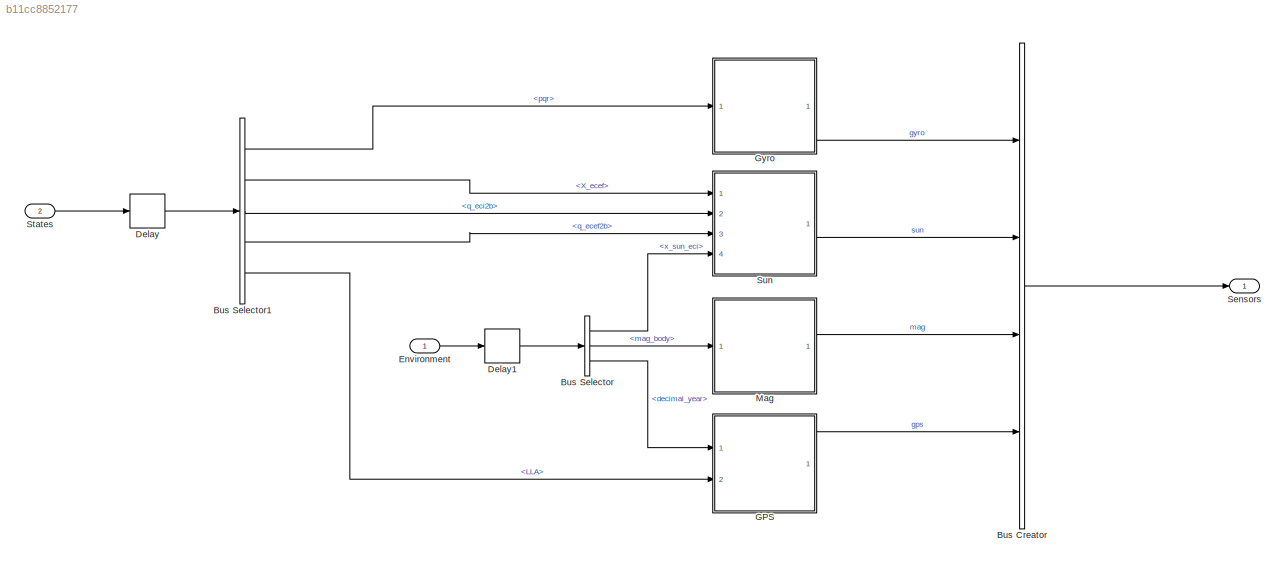
MODEL slx_b11cc8852177
KIND model
CONFIG AbsTol = auto
CONFIG EnableMultiTasking = off
CONFIG FixedStep = auto
CONFIG MaxStep = auto
CONFIG MinStep = auto
CONFIG RelTol = 1e-3
CONFIG SampleTimeConstraint = Unconstrained
CONFIG SolverName = FixedStepAuto
CONFIG StartTime = 0.0
CONFIG StopTime = 10.0
BLOCK [BusCreator] Bus Creator
  DisplayOption = bar
  InheritFromInputs = off
  Inputs = 4
  OutDataTypeStr = Bus: Sensors
  Ports = [4, 1]
BLOCK [BusSelector] Bus Selector
  OutputSignals = x_sun_eci,mag_body,decimal_year
  Ports = [1, 3]
BLOCK [BusSelector] Bus Selector1
  OutputSignals = pqr,X_ecef,q_eci2b,q_ecef2b,LLA
  Ports = [1, 5]
BLOCK [Delay] Delay
  DelayLength = 1
  InitialCondition = 0
  InputPortMap = u0
  Ports = [1, 1]
BLOCK [Delay] Delay1
  DelayLength = 1
  InitialCondition = 0
  InputPortMap = u0
  Ports = [1, 1]
BLOCK [Inport] Environment
  OutDataTypeStr = Bus: Environment
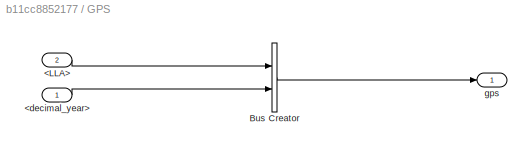
BLOCK [SubSystem] GPS
  Ports = [2, 1]
  RequestExecContextInheritance = off
BLOCK [Inport] GPS/<LLA>
  Port = 2
BLOCK [Inport] GPS/<decimal_year>
BLOCK [BusCreator] GPS/Bus Creator
  DisplayOption = bar
  InheritFromInputs = off
  Inputs = 2
  OutDataTypeStr = Bus: gnss_data
  Ports = [2, 1]
BLOCK [Outport] GPS/gps
  OutDataTypeStr = Bus: gnss_data
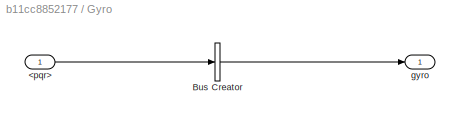
BLOCK [SubSystem] Gyro
  Ports = [1, 1]
  RequestExecContextInheritance = off
BLOCK [Inport] Gyro/<pqr>
BLOCK [BusCreator] Gyro/Bus Creator
  DisplayOption = bar
  InheritFromInputs = off
  Inputs = 1
  OutDataTypeStr = Bus: gyro_data
  Ports = [1, 1]
BLOCK [Outport] Gyro/gyro
  OutDataTypeStr = Bus: gyro_data
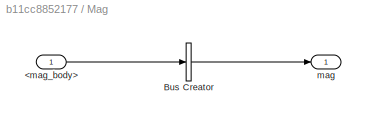
BLOCK [SubSystem] Mag
  Ports = [1, 1]
  RequestExecContextInheritance = off
BLOCK [Inport] Mag/<mag_body>
BLOCK [BusCreator] Mag/Bus Creator
  DisplayOption = bar
  InheritFromInputs = off
  Inputs = 1
  OutDataTypeStr = Bus: mag_data
  Ports = [1, 1]
BLOCK [Outport] Mag/mag
  OutDataTypeStr = Bus: mag_data
BLOCK [Outport] Sensors
  OutDataTypeStr = Bus: Sensors
BLOCK [Inport] States
  OutDataTypeStr = Bus: States
  Port = 2
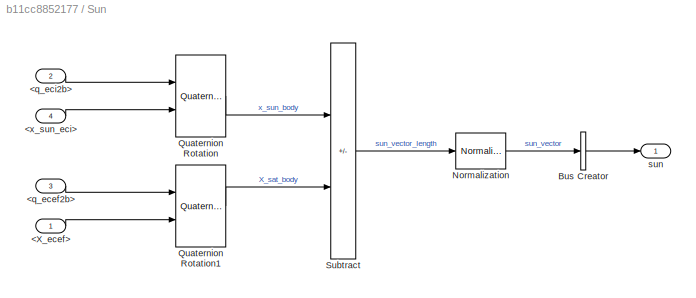
BLOCK [SubSystem] Sun
  Ports = [4, 1]
  RequestExecContextInheritance = off
BLOCK [Inport] Sun/<X_ecef>
BLOCK [Inport] Sun/<q_ecef2b>
  Port = 3
BLOCK [Inport] Sun/<q_eci2b>
  Port = 2
BLOCK [Inport] Sun/<x_sun_eci>
  Port = 4
BLOCK [BusCreator] Sun/Bus Creator
  DisplayOption = bar
  InheritFromInputs = on
  Inputs = 1
  OutDataTypeStr = Bus: sun_data
  Ports = [1, 1]
BLOCK [Reference] Sun/Normalization  REF=dspmathops/Normalization
  Ports = [1, 1]
  SourceBlock = dspmathops/Normalization
  SourceProductBaseCode = DS
  SourceType = Normalization
BLOCK [Reference] Sun/Quaternion Rotation  REF=aerolibutil/Quaternion
Rotation
  Ports = [2, 1]
  SourceBlock = aerolibutil/Quaternion\nRotation
  SourceProductBaseCode = AE
  SourceType = Quaternion Rotation
BLOCK [Reference] Sun/Quaternion Rotation1  REF=aerolibutil/Quaternion
Rotation
  Ports = [2, 1]
  SourceBlock = aerolibutil/Quaternion\nRotation
  SourceProductBaseCode = AE
  SourceType = Quaternion Rotation
BLOCK [Sum] Sun/Subtract
  IconShape = rectangular
  Inputs = +-
  Ports = [2, 1]
BLOCK [Outport] Sun/sun
  OutDataTypeStr = Bus: sun_data
LINE Bus Creator:1 -> Sensors:1
LINE Bus Selector1:1 -> Gyro:1
LINE Bus Selector1:2 -> Sun:1
LINE Bus Selector1:3 -> Sun:2
LINE Bus Selector1:4 -> Sun:3
LINE Bus Selector1:5 -> GPS:2
LINE Bus Selector:1 -> Sun:4
LINE Bus Selector:2 -> Mag:1
LINE Bus Selector:3 -> GPS:1
LINE Delay1:1 -> Bus Selector:1
LINE Delay:1 -> Bus Selector1:1
LINE Environment:1 -> Delay1:1
LINE GPS/<LLA>:1 -> GPS/Bus Creator:1
LINE GPS/<decimal_year>:1 -> GPS/Bus Creator:2
LINE GPS/Bus Creator:1 -> GPS/gps:1
LINE GPS:1 -> Bus Creator:4
LINE Gyro/<pqr>:1 -> Gyro/Bus Creator:1
LINE Gyro/Bus Creator:1 -> Gyro/gyro:1
LINE Gyro:1 -> Bus Creator:1
LINE Mag/<mag_body>:1 -> Mag/Bus Creator:1
LINE Mag/Bus Creator:1 -> Mag/mag:1
LINE Mag:1 -> Bus Creator:3
LINE States:1 -> Delay:1
LINE Sun/<X_ecef>:1 -> Sun/Quaternion Rotation1:2
LINE Sun/<q_ecef2b>:1 -> Sun/Quaternion Rotation1:1
LINE Sun/<q_eci2b>:1 -> Sun/Quaternion Rotation:1
LINE Sun/<x_sun_eci>:1 -> Sun/Quaternion Rotation:2
LINE Sun/Bus Creator:1 -> Sun/sun:1
LINE Sun/Normalization:1 -> Sun/Bus Creator:1
LINE Sun/Quaternion Rotation1:1 -> Sun/Subtract:2
LINE Sun/Quaternion Rotation:1 -> Sun/Subtract:1
LINE Sun/Subtract:1 -> Sun/Normalization:1
LINE Sun:1 -> Bus Creator:2
